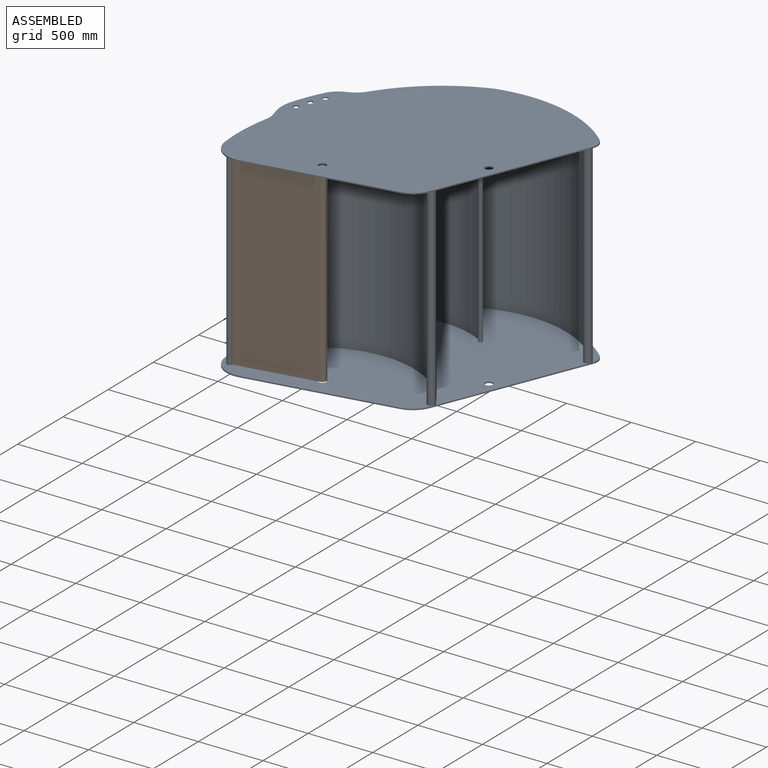
[diagram: assembled view]
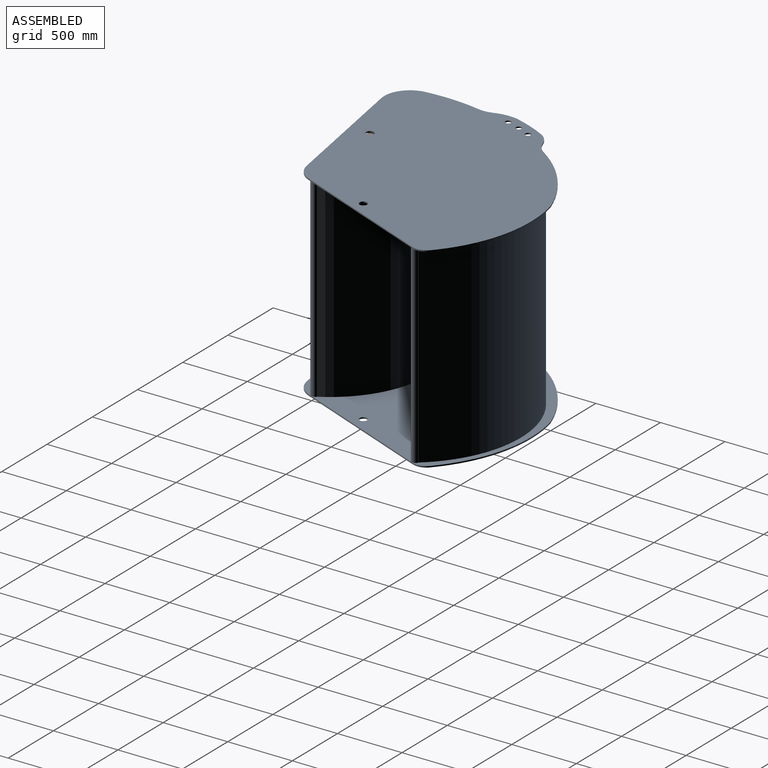
[diagram: assembled view, second angle]
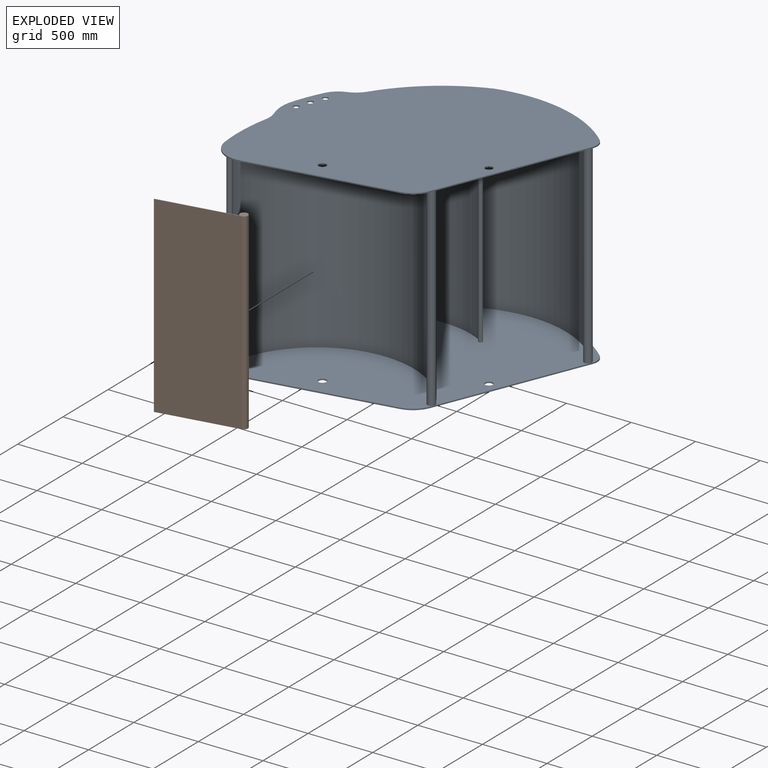
[diagram: exploded view]
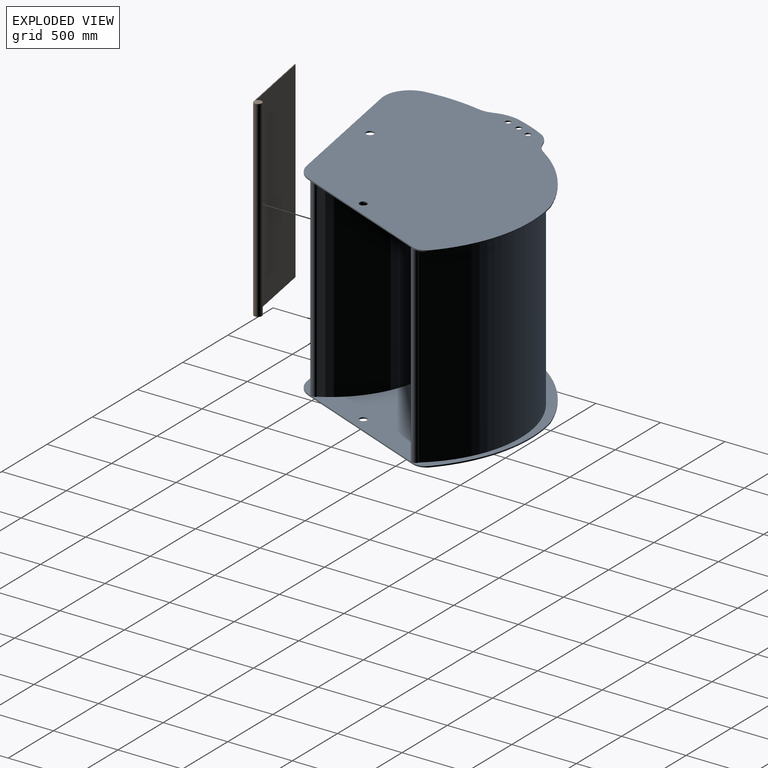
[diagram: exploded view, second angle]
ASSEMBLY  parts=2 mates=2
PART A: 61 faces, bbox 2164.2x1661x1520 mm
  f0: cylinder r=30.5mm len=61mm, axis (0,0,-1), area 1916.4mm2, adj f48,f49
  f1: cylinder r=29.5mm len=59mm, axis (0,0,-1), area 1853.5mm2, adj f48,f49
  f2: cylinder r=22mm len=44mm, axis (0,0,-1), area 1382.3mm2, adj f48,f49
  f3: cylinder r=22mm len=44mm, axis (0,0,-1), area 1382.3mm2, adj f48,f49
  f4: cylinder r=22mm len=44mm, axis (0,0,-1), area 1382.3mm2, adj f48,f49
  f5: cylinder r=326.18mm len=176.61mm, axis (0,0,-1), area 1797.7mm2, adj f48,f49,f50,f60
  f6: cylinder r=200mm len=212.82mm, axis (0,0,-1), area 3269.9mm2, adj f48,f49,f51,f52
  f7: cylinder r=20.5mm len=1500mm, axis (0,0,-1), area 183146.8mm2, adj f30,f44,f45,f49
  f8: cylinder r=30.5mm len=1500mm, axis (0,0,-1), area 272705.4mm2, adj f30,f44,f45,f46,f47,f49
  f9: cylinder r=15.5mm len=1500mm, axis (0,0,-1), area 135747.8mm2, adj f30,f41,f43,f49
  f10: cylinder r=15.5mm len=1500mm, axis (0,0,-1), area 136340.4mm2, adj f30,f37,f40,f49
  f11: cylinder r=30.5mm len=1500mm, axis (0,0,-1), area 274743.1mm2, adj f30,f32,f34,f35,f36,f49
  f12: cylinder r=30.5mm len=61mm, axis (0,0,-1), area 1916.4mm2, adj f30,f31
  f13: cylinder r=22mm len=44mm, axis (0,0,-1), area 1382.3mm2, adj f30,f31
  f14: cylinder r=22mm len=44mm, axis (0,0,-1), area 1382.3mm2, adj f30,f31
  f15: cylinder r=22mm len=44mm, axis (0,0,-1), area 1382.3mm2, adj f30,f31
  f16: cylinder r=29.5mm len=59mm, axis (0,0,-1), area 1853.5mm2, adj f30,f31
  f17: cylinder r=326.18mm len=176.61mm, axis (0,0,-1), area 1797.7mm2, adj f28,f29,f30,f31
  f18: cylinder r=200mm len=212.82mm, axis (0,0,-1), area 3269.9mm2, adj f19,f20,f30,f31
  f19: cylinder r=1403.06mm len=415.74mm, axis (0,0,-1), area 4273.2mm2, adj f18,f29,f30,f31
  f20: plane 1123.76x10mm, normal (0,-1,0), area 11237.6mm2, adj f18,f21,f30,f31
  f21: cylinder r=200mm len=169mm, axis (0,0,-1), area 2013.2mm2, adj f20,f22,f30,f31
  f22: plane 1036.5x655.9mm, normal (0.85,-0.53,0), area 12265.9mm2, adj f21,f23,f30,f31,f36,f47
  f23: cylinder r=100mm len=114.68mm, axis (0,0,-1), area 1222.9mm2, adj f22,f24,f30,f31
  f24: cylinder r=1074.34mm len=926.41mm, axis (0,0,-1), area 10568mm2, adj f23,f25,f30,f31
  f25: cylinder r=1282.61mm len=713.26mm, axis (0,0,-1), area 8227.7mm2, adj f24,f26,f30,f31
  f26: cylinder r=200mm len=117.51mm, axis (0,0,-1), area 1346.6mm2, adj f25,f27,f30,f31
  f27: cylinder r=186.95mm len=116.81mm, axis (0,0,-1), area 1363.1mm2, adj f26,f28,f30,f31
  f28: cylinder r=1324.47mm len=239.75mm, axis (0,0,-1), area 2828.3mm2, adj f17,f27,f30,f31
  f29: cylinder r=200mm len=107.43mm, axis (0,0,-1), area 1093.1mm2, adj f17,f19,f30,f31
  f30: plane 2164.16x1660.98mm, normal (0,0,1), area 2565292.9mm2, adj f7,f8,f9,f10,f11,f12,f13,f14
  f31: plane 2164.16x1660.98mm, normal (0,0,-1), area 2603609.2mm2, adj f12,f13,f14,f15,f16,f17,f18,f19
  f32: cylinder r=883.17mm len=1500mm, axis (0,0,-1), area 1936048.7mm2, adj f11,f30,f33,f49
  f33: plane 1500x5.5mm, normal (-0.92,-0.4,0), area 9000mm2, adj f30,f32,f34,f49
  f34: cylinder r=877.17mm len=1500mm, axis (0,0,-1), area 1914005.6mm2, adj f11,f30,f33,f49
  f35: plane 9.3x5.88mm, normal (0,0,1), area 3.7mm2, adj f11,f54
  f36: plane 9.3x5.88mm, normal (0,0,-1), area 3.7mm2, adj f11,f22
  f37: cylinder r=685.89mm len=1500mm, axis (0,0,-1), area 1444091.5mm2, adj f10,f30,f38,f49
  f38: plane 1500x4.62mm, normal (-0.77,-0.64,0), area 9000mm2, adj f30,f37,f39,f49
  f39: plane 1500x0.08mm, normal (0.65,-0.76,0), area 152.6mm2, adj f30,f38,f40,f49
  f40: cylinder r=679.89mm len=1500mm, axis (0,0,-1), area 1427930.9mm2, adj f10,f30,f39,f49
  f41: cylinder r=640.37mm len=1500mm, axis (0,0,-1), area 1242581.2mm2, adj f9,f30,f42,f49
  f42: plane 1500x5.24mm, normal (-0.49,-0.87,0), area 9000mm2, adj f30,f41,f43,f49
  f43: cylinder r=634.37mm len=1500mm, axis (0,0,-1), area 1226053.6mm2, adj f9,f30,f42,f49
  f44: cylinder r=755.25mm len=1500mm, axis (0,0,-1), area 2799788.5mm2, adj f7,f8,f30,f49
  f45: cylinder r=761.25mm len=1500mm, axis (0,0,-1), area 2838096.4mm2, adj f7,f8,f30,f49
  f46: plane 9.3x5.88mm, normal (0,0,1), area 3.7mm2, adj f8,f54
  f47: plane 9.3x5.88mm, normal (0,0,-1), area 3.7mm2, adj f8,f22
  f48: plane 2164.16x1660.98mm, normal (0,0,1), area 2603609.2mm2, adj f0,f1,f2,f3,f4,f5,f6,f50
  f49: plane 2164.16x1660.98mm, normal (0,0,-1), area 2565292.9mm2, adj f0,f1,f2,f3,f4,f5,f6,f7
  f50: cylinder r=200mm len=107.43mm, axis (0,0,-1), area 1093.1mm2, adj f5,f48,f49,f51
  f51: cylinder r=1403.06mm len=415.74mm, axis (0,0,-1), area 4273.2mm2, adj f6,f48,f49,f50
  f52: plane 1123.76x10mm, normal (0,-1,0), area 11237.6mm2, adj f6,f48,f49,f53
  f53: cylinder r=200mm len=169mm, axis (0,0,-1), area 2013.2mm2, adj f48,f49,f52,f54
  f54: plane 1036.5x655.9mm, normal (0.85,-0.53,0), area 12265.9mm2, adj f35,f46,f48,f49,f53,f55
  f55: cylinder r=100mm len=114.68mm, axis (0,0,-1), area 1222.9mm2, adj f48,f49,f54,f56
  f56: cylinder r=1074.34mm len=926.41mm, axis (0,0,-1), area 10568mm2, adj f48,f49,f55,f57
  f57: cylinder r=1282.61mm len=713.26mm, axis (0,0,-1), area 8227.7mm2, adj f48,f49,f56,f58
  f58: cylinder r=200mm len=117.51mm, axis (0,0,-1), area 1346.6mm2, adj f48,f49,f57,f59
  f59: cylinder r=186.95mm len=116.81mm, axis (0,0,-1), area 1363.1mm2, adj f48,f49,f58,f60
  f60: cylinder r=1324.47mm len=239.75mm, axis (0,0,-1), area 2828.3mm2, adj f5,f48,f49,f59
PART B: 6 faces, bbox 646.3x61x1490 mm
  f0: cylinder r=30.5mm len=1490mm, axis (0,0,-1), area 256544.7mm2, adj f1,f2,f4,f5
  f1: plane 1490x615.77mm, normal (0,-1,0), area 917501.9mm2, adj f0,f3,f4,f5
  f2: plane 1490x597.61mm, normal (0,1,0), area 890434.7mm2, adj f0,f3,f4,f5
  f3: plane 1490x6mm, normal (-1,0,0), area 8940mm2, adj f1,f2,f4,f5
  f4: plane 646.27x61mm, normal (0,0,1), area 6542.9mm2, adj f0,f1,f2,f3
  f5: plane 646.27x61mm, normal (0,0,-1), area 6542.9mm2, adj f0,f1,f2,f3
PLACE A rot(axis=(0,0,1),10deg) t=(0,0,-10)mm
PLACE B rot(axis=(0,0,1),10deg) t=(0,0,-10)mm
MATE planar A.f0 <-> B.f0  axis (0,0,-1) through (-889.87,-570.86,750)mm
MATE revolute A.f0 <-> B.f0  axis (0,0,-1) through (-889.87,-570.86,750)mm
